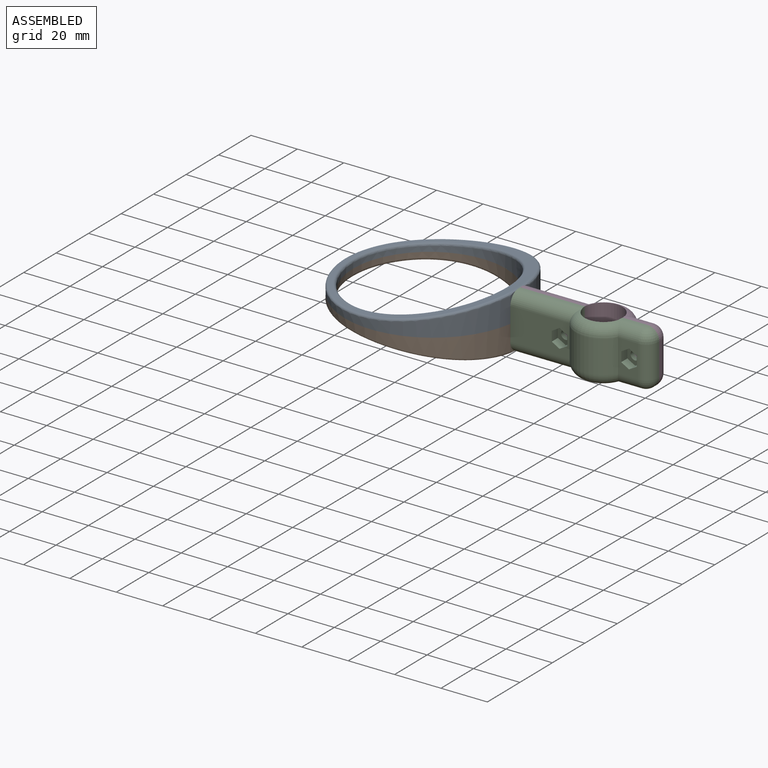
[diagram: assembled view]
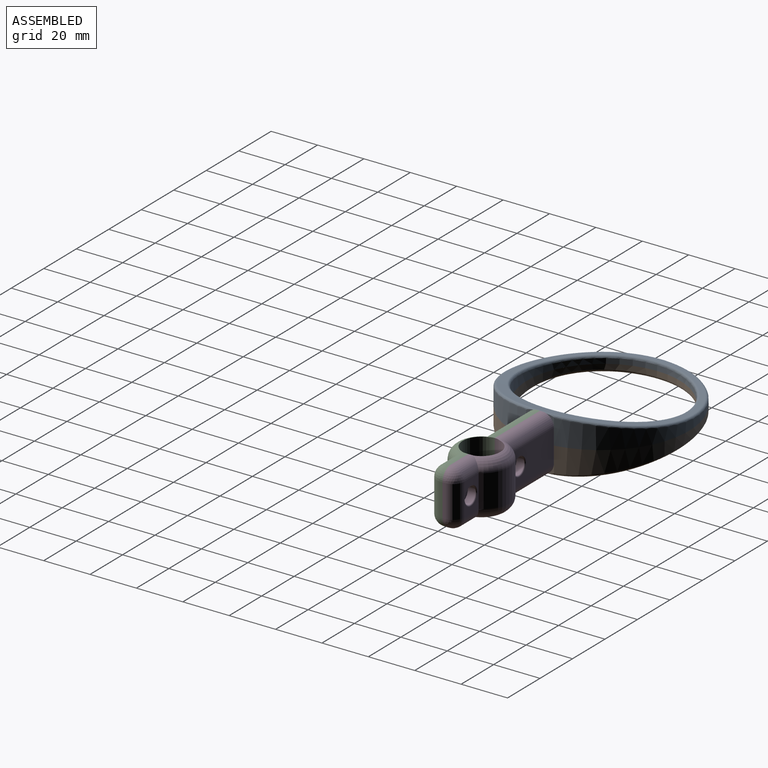
[diagram: assembled view, second angle]
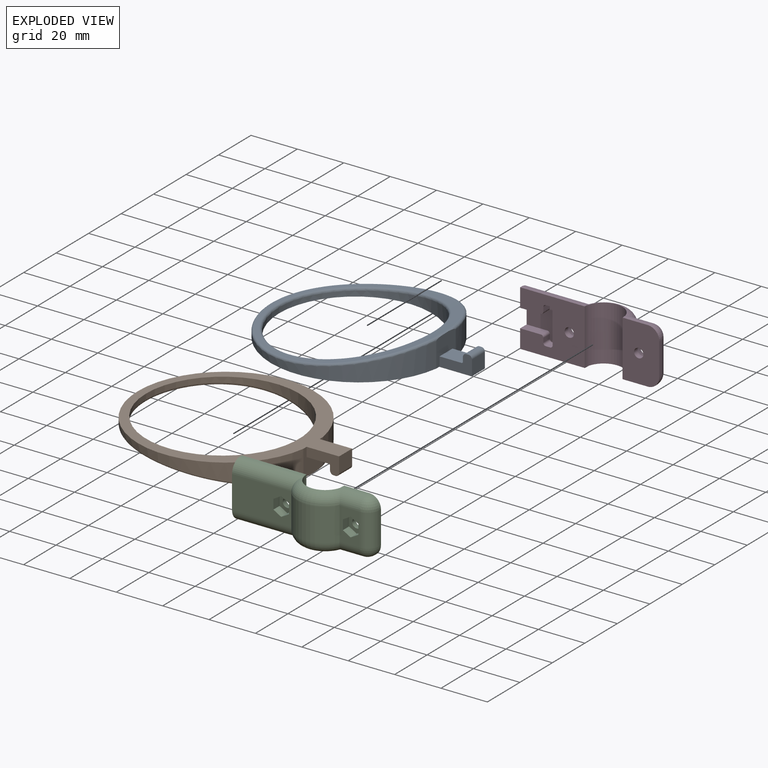
[diagram: exploded view]
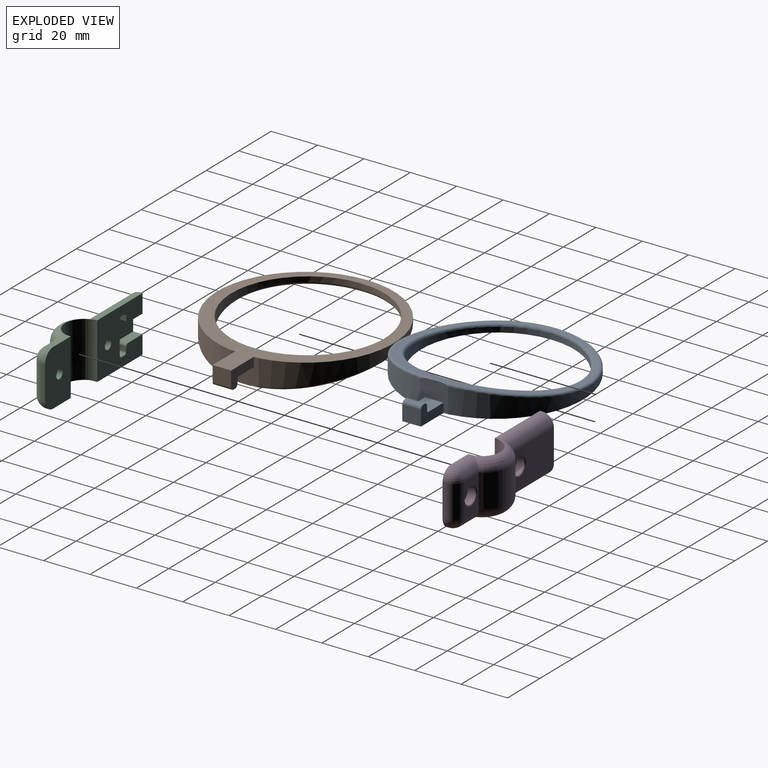
[diagram: exploded view, second angle]
ASSEMBLY  parts=4 mates=3
PART A: 16 faces, bbox 89.5x76x11.9 mm
  f0: cylinder r=38mm len=76mm, axis (0,0,-1), area 1116.6mm2, adj f6,f12,f14
  f1: cylinder r=33mm len=66mm, axis (0,0,-1), area 1002.9mm2, adj f6,f15
  f2: plane 9.5x8mm, normal (0,0,1), area 76mm2, adj f3,f5,f11,f12
  f3: plane 14x8mm, normal (0,-1,0), area 70.7mm2, adj f2,f4,f6,f7,f8,f9,f10,f11
  f4: plane 8x6.5mm, normal (1,0,0), area 52mm2, adj f3,f5,f6,f10
  f5: plane 14x8mm, normal (0,1,0), area 70.7mm2, adj f2,f4,f6,f7,f8,f9,f10,f11
  f6: plane 89.52x76mm, normal (0,0,-1), area 1223.4mm2, adj f0,f1,f3,f4,f5,f12
  f7: plane 8x1.9mm, normal (-1,0,0), area 15.2mm2, adj f3,f5,f9,f11
  f8: plane 8x0.9mm, normal (0,0,1), area 7.2mm2, adj f3,f5,f9,f10
  f9: cylinder r=1.5mm len=8mm, axis (0,1,0), area 18.8mm2, adj f3,f5,f7,f8
  f10: cylinder r=1.5mm len=8mm, axis (0,-1,0), area 18.8mm2, adj f3,f4,f5,f8
  f11: cylinder r=0.6mm len=8mm, axis (0,1,0), area 7.5mm2, adj f2,f3,f5,f7
  f12: plane 12x11.72mm, normal (1,0,0), area 106.2mm2, adj f0,f2,f3,f5,f6,f14
  f13: cylinder r=245.88mm len=74.01mm, axis (0,1,0), area 673.6mm2, adj f14,f15
  f14: bspline ~75.96x75.93mm, area 381.3mm2, adj f0,f12,f13
  f15: bspline ~68.02x67.74mm, area 315.8mm2, adj f1,f13
PART B: same geometry as A
PART C: 53 faces, bbox 60x13x24 mm
  f0: plane 24x6mm, normal (-1,0,0), area 101.3mm2, adj f2,f5,f6,f7,f14,f15,f39,f51
  f1: plane 14x8.61mm, normal (0,1,0), area 79.3mm2, adj f11,f19,f20,f24,f25,f26,f27,f28
  f2: plane 25.61x14mm, normal (0,1,0), area 317.3mm2, adj f0,f11,f14,f15,f32,f33,f34,f35
  f3: cylinder r=2mm len=4mm, axis (0,1,0), area 27.6mm2, adj f7,f38
  f4: cylinder r=2mm len=4mm, axis (0,1,0), area 27.6mm2, adj f9,f31
  f5: plane 27.91x1mm, normal (0,0,1), area 27.9mm2, adj f0,f7,f8,f14
  f6: plane 27.91x1mm, normal (0,0,-1), area 27.9mm2, adj f0,f7,f8,f15
  f7: plane 27.85x24mm, normal (0,-1,0), area 512.3mm2, adj f0,f3,f5,f6,f8,f39,f40,f41
  f8: cylinder r=8.15mm len=24mm, axis (0,0,-1), area 608.5mm2, adj f5,f6,f7,f9,f12,f13,f14,f15
  f9: plane 24x15.85mm, normal (0,-1,0), area 357.1mm2, adj f4,f8,f10,f12,f13,f18,f21
  f10: plane 14x1mm, normal (1,0,0), area 14mm2, adj f9,f18,f21,f24
  f11: cylinder r=12mm len=20.78mm, axis (0,0,-1), area 351.9mm2, adj f1,f2,f16,f17
  f12: plane 10.91x1mm, normal (0,0,1), area 10.9mm2, adj f8,f9,f18,f19
  f13: plane 10.91x1mm, normal (0,0,-1), area 10.9mm2, adj f8,f9,f20,f21
  f14: cylinder r=5mm len=28.14mm, axis (1,0,0), area 209.6mm2, adj f0,f2,f5,f8,f16
  f15: cylinder r=5mm len=28.14mm, axis (-1,0,0), area 209.6mm2, adj f0,f2,f6,f8,f17
  f16: torus R=7mm, axis (0,0,1), area 159.3mm2, adj f8,f11,f14,f19
  f17: torus R=7mm, axis (0,0,1), area 159.3mm2, adj f8,f11,f15,f20
  f18: cylinder r=5mm len=5mm, axis (0,-1,0), area 7.9mm2, adj f9,f10,f12,f22
  f19: cylinder r=5mm len=11.14mm, axis (1,0,0), area 76.1mm2, adj f1,f8,f12,f16,f22
  f20: cylinder r=5mm len=11.14mm, axis (-1,0,0), area 76.1mm2, adj f1,f8,f13,f17,f23
  f21: cylinder r=5mm len=5mm, axis (0,1,0), area 7.9mm2, adj f9,f10,f13,f23
  f22: sphere r=5mm, area 39.3mm2, adj f18,f19,f24
  f23: sphere r=5mm, area 39.3mm2, adj f20,f21,f24
  f24: cylinder r=5mm len=14mm, axis (0,0,1), area 110mm2, adj f1,f10,f22,f23
  f25: plane 3.8x3.35mm, normal (0.5,0,0.87), area 14.7mm2, adj f1,f26,f30,f31
  f26: plane 4.21x3.8mm, normal (1,0,0), area 16mm2, adj f1,f25,f27,f31
  f27: plane 3.8x3.35mm, normal (0.5,0,-0.87), area 14.7mm2, adj f1,f26,f28,f31
  f28: plane 3.8x3.35mm, normal (-0.5,0,-0.87), area 14.7mm2, adj f1,f27,f29,f31
  f29: plane 4.21x3.8mm, normal (-1,0,0), area 16mm2, adj f1,f28,f30,f31
  f30: plane 3.8x3.35mm, normal (-0.5,0,0.87), area 14.7mm2, adj f1,f25,f29,f31
  f31: plane 8.08x6.7mm, normal (0,1,0), area 28.6mm2, adj f4,f25,f26,f27,f28,f29,f30
  f32: plane 4.21x3.8mm, normal (-1,0,0), area 16mm2, adj f2,f33,f37,f38
  f33: plane 3.8x3.35mm, normal (-0.5,0,0.87), area 14.7mm2, adj f2,f32,f34,f38
  f34: plane 3.8x3.35mm, normal (0.5,0,0.87), area 14.7mm2, adj f2,f33,f35,f38
  f35: plane 4.21x3.8mm, normal (1,0,0), area 16mm2, adj f2,f34,f36,f38
  f36: plane 3.8x3.35mm, normal (0.5,0,-0.87), area 14.7mm2, adj f2,f35,f37,f38
  f37: plane 3.8x3.35mm, normal (-0.5,0,-0.87), area 14.7mm2, adj f2,f32,f36,f38
  f38: plane 8.08x6.7mm, normal (0,1,0), area 28.6mm2, adj f3,f32,f33,f34,f35,f36,f37
  f39: plane 8.93x4mm, normal (0,0,1), area 35.7mm2, adj f0,f7,f40,f52
  f40: cylinder r=1.07mm len=4mm, axis (0,-1,0), area 6.7mm2, adj f7,f39,f41,f52
  f41: plane 4x1.86mm, normal (1,0,0), area 7.5mm2, adj f7,f40,f42,f52
  f42: cylinder r=1.07mm len=4mm, axis (0,-1,0), area 6.7mm2, adj f7,f41,f43,f52
  f43: plane 4x1.86mm, normal (0,0,1), area 7.5mm2, adj f7,f42,f44,f52
  f44: cylinder r=1.07mm len=4mm, axis (0,-1,0), area 6.7mm2, adj f7,f43,f45,f52
  f45: plane 13.86x4mm, normal (-1,0,0), area 55.5mm2, adj f7,f44,f46,f52
  f46: cylinder r=1.07mm len=4mm, axis (0,-1,0), area 6.7mm2, adj f7,f45,f47,f52
  f47: plane 4x1.86mm, normal (0,0,-1), area 7.5mm2, adj f7,f46,f48,f52
  f48: cylinder r=1.07mm len=4mm, axis (0,-1,0), area 6.7mm2, adj f7,f47,f49,f52
  f49: plane 4x1.86mm, normal (1,0,0), area 7.5mm2, adj f7,f48,f50,f52
  f50: cylinder r=1.07mm len=4mm, axis (0,-1,0), area 6.7mm2, adj f7,f49,f51,f52
  f51: plane 8.93x4mm, normal (0,0,-1), area 35.7mm2, adj f0,f7,f50,f52
  f52: plane 16x14mm, normal (0,-1,0), area 143.5mm2, adj f0,f39,f40,f41,f42,f43,f44,f45
PART D: 46 faces, bbox 60x13x24 mm
  f0: plane 24x6mm, normal (-1,0,0), area 101.3mm2, adj f1,f4,f5,f6,f14,f15,f32,f44
  f1: plane 25.61x14mm, normal (0,1,0), area 308.2mm2, adj f0,f11,f14,f15,f29
  f2: cylinder r=2mm len=4mm, axis (0,1,0), area 27.6mm2, adj f6,f28
  f3: cylinder r=2mm len=4mm, axis (0,1,0), area 27.6mm2, adj f8,f26
  f4: plane 27.91x1mm, normal (0,0,1), area 27.9mm2, adj f0,f6,f7,f14
  f5: plane 27.91x1mm, normal (0,0,-1), area 27.9mm2, adj f0,f6,f7,f15
  f6: plane 27.85x24mm, normal (0,-1,0), area 512.3mm2, adj f0,f2,f4,f5,f7,f32,f33,f34
  f7: cylinder r=8.15mm len=24mm, axis (0,0,-1), area 608.5mm2, adj f4,f5,f6,f8,f12,f13,f14,f15
  f8: plane 24x15.85mm, normal (0,-1,0), area 357.1mm2, adj f3,f7,f9,f12,f13,f18,f21
  f9: plane 14x1mm, normal (1,0,0), area 14mm2, adj f8,f18,f21,f24
  f10: plane 14x8.61mm, normal (0,1,0), area 70.4mm2, adj f11,f19,f20,f24,f30
  f11: cylinder r=12mm len=20.78mm, axis (0,0,-1), area 351.9mm2, adj f1,f10,f16,f17
  f12: plane 10.91x1mm, normal (0,0,1), area 10.9mm2, adj f7,f8,f18,f19
  f13: plane 10.91x1mm, normal (0,0,-1), area 10.9mm2, adj f7,f8,f20,f21
  f14: cylinder r=5mm len=28.14mm, axis (1,0,0), area 209.6mm2, adj f0,f1,f4,f7,f16
  f15: cylinder r=5mm len=28.14mm, axis (-1,0,0), area 209.6mm2, adj f0,f1,f5,f7,f17
  f16: torus R=7mm, axis (0,0,1), area 159.3mm2, adj f7,f11,f14,f19
  f17: torus R=7mm, axis (0,0,1), area 159.3mm2, adj f7,f11,f15,f20
  f18: cylinder r=5mm len=5mm, axis (0,-1,0), area 7.9mm2, adj f8,f9,f12,f22
  f19: cylinder r=5mm len=11.14mm, axis (1,0,0), area 76.1mm2, adj f7,f10,f12,f16,f22
  f20: cylinder r=5mm len=11.14mm, axis (-1,0,0), area 76.1mm2, adj f7,f10,f13,f17,f23
  f21: cylinder r=5mm len=5mm, axis (0,1,0), area 7.9mm2, adj f8,f9,f13,f23
  f22: sphere r=5mm, area 39.3mm2, adj f18,f19,f24
  f23: sphere r=5mm, area 39.3mm2, adj f20,f21,f24
  f24: cylinder r=5mm len=14mm, axis (0,0,1), area 109.8mm2, adj f9,f10,f22,f23,f31
  f25: cylinder r=3.5mm len=7mm, axis (0,1,0), area 72.6mm2, adj f26,f30,f31
  f26: plane 7x7mm, normal (0,1,0), area 25.9mm2, adj f3,f25
  f27: cylinder r=3.5mm len=7mm, axis (0,1,0), area 72.6mm2, adj f28,f29
  f28: plane 7x7mm, normal (0,1,0), area 25.9mm2, adj f2,f27
  f29: torus R=4mm, axis (0,1,0), area 18.2mm2, adj f1,f27
  f30: torus R=4mm, axis (0,1,0), area 16.7mm2, adj f10,f25,f31
  f31: bspline ~3.6x0.89mm, area 1.5mm2, adj f24,f25,f30
  f32: plane 8.93x4mm, normal (0,0,1), area 35.7mm2, adj f0,f6,f33,f45
  f33: cylinder r=1.07mm len=4mm, axis (0,-1,0), area 6.7mm2, adj f6,f32,f34,f45
  f34: plane 4x1.86mm, normal (1,0,0), area 7.5mm2, adj f6,f33,f35,f45
  f35: cylinder r=1.07mm len=4mm, axis (0,-1,0), area 6.7mm2, adj f6,f34,f36,f45
  f36: plane 4x1.86mm, normal (0,0,1), area 7.5mm2, adj f6,f35,f37,f45
  f37: cylinder r=1.07mm len=4mm, axis (0,-1,0), area 6.7mm2, adj f6,f36,f38,f45
  f38: plane 13.86x4mm, normal (-1,0,0), area 55.5mm2, adj f6,f37,f39,f45
  f39: cylinder r=1.07mm len=4mm, axis (0,-1,0), area 6.7mm2, adj f6,f38,f40,f45
  f40: plane 4x1.86mm, normal (0,0,-1), area 7.5mm2, adj f6,f39,f41,f45
  f41: cylinder r=1.07mm len=4mm, axis (0,-1,0), area 6.7mm2, adj f6,f40,f42,f45
  f42: plane 4x1.86mm, normal (1,0,0), area 7.5mm2, adj f6,f41,f43,f45
  f43: cylinder r=1.07mm len=4mm, axis (0,-1,0), area 6.7mm2, adj f6,f42,f44,f45
  f44: plane 8.93x4mm, normal (0,0,-1), area 35.7mm2, adj f0,f6,f43,f45
  f45: plane 16x14mm, normal (0,-1,0), area 143.5mm2, adj f0,f32,f33,f34,f35,f36,f37,f38
PLACE A t=(-42.9,-15.82,24.77)mm
PLACE B rot(axis=(1,0,0),180deg) t=(-42.9,-15.82,24.77)mm
PLACE C rot(axis=(1,0,0),180deg) t=(3.15,-15.82,36.77)mm
PLACE D t=(3.15,-15.82,12.77)mm
MATE fastened D.f8 <-> C.f9  axis (0,-1,0) through (-4.95,-15.82,24.77)mm
MATE fastened B.f3 <-> D.f45  axis (0,1,0) through (-44.85,-11.82,16.77)mm
MATE fastened A.f5 <-> D.f45  axis (0,1,0) through (-44.85,-11.82,32.77)mm
